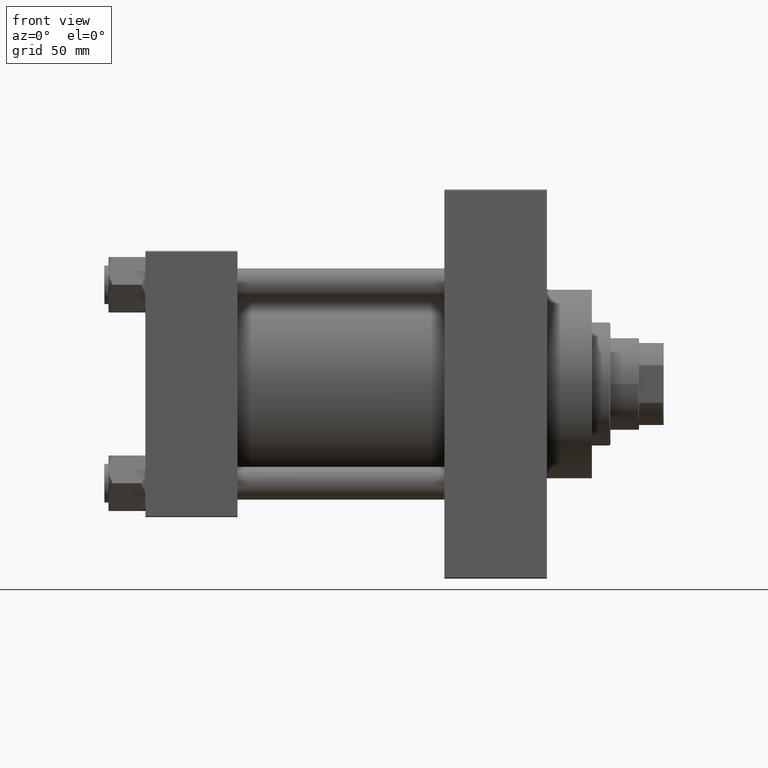
[diagram: clean part render]
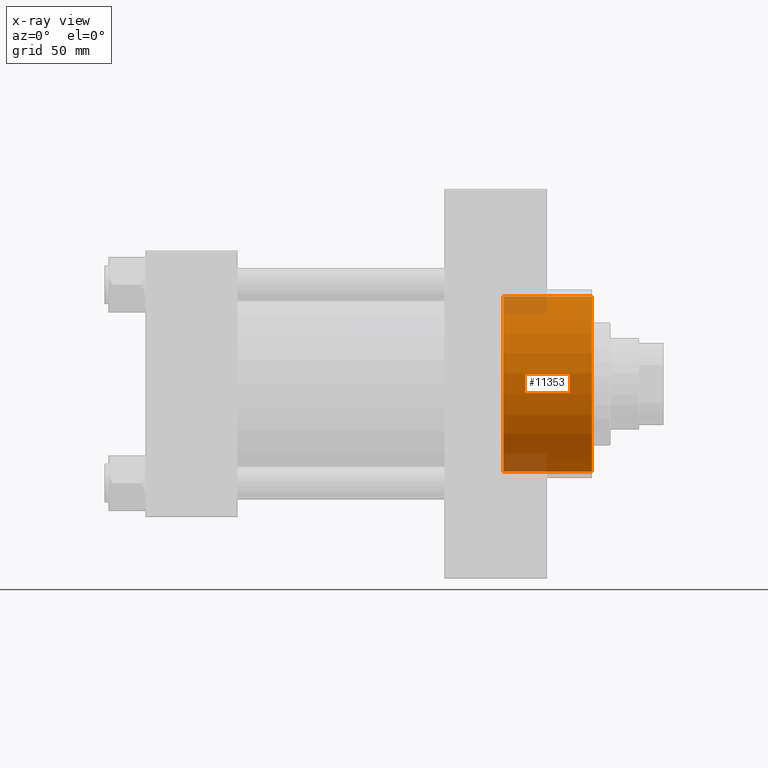
[diagram: x-ray — body ghosted, one internal face saturated and labeled with its STEP entity id]
A machine part, front view, then the same camera in x-ray: the body is ghosted and one INTERNAL B-rep face — a face not visible from any outside direction — is saturated and labeled: STEP entity #11353.
In plain terms, the highlighted cylindrical surface (partial cylindrical patch) has radius 42.75 mm, axis along (1, 0, 0).
Its self-contained STEP definition (entity closure, byte-faithful):
#682 = CIRCLE ( 'NONE', #29176, 42.75000000000000000 ) ;
#1096 = CARTESIAN_POINT ( 'NONE',  ( 174.7400000000000091, 0.000000000000000000, -42.75000000000000000 ) ) ;
#2944 = ORIENTED_EDGE ( 'NONE', *, *, #41215, .F. ) ;
#3793 = CARTESIAN_POINT ( 'NONE',  ( 174.7400000000000091, 5.235365066354935472E-15, 42.75000000000000000 ) ) ;
#6520 = CARTESIAN_POINT ( 'NONE',  ( 174.7400000000000091, 5.235365066354935472E-15, 42.75000000000000000 ) ) ;
#7078 = DIRECTION ( 'NONE',  ( 1.000000000000000000, -0.000000000000000000, -0.000000000000000000 ) ) ;
#8352 = DIRECTION ( 'NONE',  ( 1.000000000000000000, -0.000000000000000000, -0.000000000000000000 ) ) ;
#9221 = DIRECTION ( 'NONE',  ( 1.000000000000000000, 0.000000000000000000, 0.000000000000000000 ) ) ;
#10691 = DIRECTION ( 'NONE',  ( 0.000000000000000000, 0.000000000000000000, -1.000000000000000000 ) ) ;
#11353 = ADVANCED_FACE ( 'NONE', ( #19101 ), #26123, .F. ) ;
#15619 = AXIS2_PLACEMENT_3D ( 'NONE', #33330, #7078, #10691 ) ;
#16514 = ORIENTED_EDGE ( 'NONE', *, *, #20752, .T. ) ;
#16553 = VERTEX_POINT ( 'NONE', #23067 ) ;
#17282 = ORIENTED_EDGE ( 'NONE', *, *, #28596, .F. ) ;
#18129 = AXIS2_PLACEMENT_3D ( 'NONE', #45823, #23885, #43644 ) ;
#18430 = VECTOR ( 'NONE', #8352, 1000.000000000000000 ) ;
#19101 = FACE_OUTER_BOUND ( 'NONE', #34567, .T. ) ;
#20752 = EDGE_CURVE ( 'NONE', #24999, #16553, #43522, .T. ) ;
#23067 = CARTESIAN_POINT ( 'NONE',  ( 218.0000000000000000, 0.000000000000000000, -42.75000000000000000 ) ) ;
#23204 = DIRECTION ( 'NONE',  ( 0.000000000000000000, 0.000000000000000000, -1.000000000000000000 ) ) ;
#23262 = VERTEX_POINT ( 'NONE', #6520 ) ;
#23885 = DIRECTION ( 'NONE',  ( 1.000000000000000000, 0.000000000000000000, 0.000000000000000000 ) ) ;
#24999 = VERTEX_POINT ( 'NONE', #28783 ) ;
#26123 = CYLINDRICAL_SURFACE ( 'NONE', #15619, 42.75000000000000000 ) ;
#26676 = LINE ( 'NONE', #1096, #42071 ) ;
#28596 = EDGE_CURVE ( 'NONE', #23262, #42176, #682, .T. ) ;
#28783 = CARTESIAN_POINT ( 'NONE',  ( 218.0000000000000000, 5.235365066354935472E-15, 42.75000000000000000 ) ) ;
#29176 = AXIS2_PLACEMENT_3D ( 'NONE', #38623, #9221, #23204 ) ;
#33330 = CARTESIAN_POINT ( 'NONE',  ( 174.7400000000000091, 0.000000000000000000, 0.000000000000000000 ) ) ;
#33652 = EDGE_CURVE ( 'NONE', #23262, #24999, #44996, .T. ) ;
#34567 = EDGE_LOOP ( 'NONE', ( #17282, #39766, #16514, #2944 ) ) ;
#36718 = CARTESIAN_POINT ( 'NONE',  ( 174.7400000000000091, 0.000000000000000000, -42.75000000000000000 ) ) ;
#38623 = CARTESIAN_POINT ( 'NONE',  ( 174.7400000000000091, 0.000000000000000000, 0.000000000000000000 ) ) ;
#39766 = ORIENTED_EDGE ( 'NONE', *, *, #33652, .T. ) ;
#41215 = EDGE_CURVE ( 'NONE', #42176, #16553, #26676, .T. ) ;
#41835 = DIRECTION ( 'NONE',  ( 1.000000000000000000, -0.000000000000000000, -0.000000000000000000 ) ) ;
#42071 = VECTOR ( 'NONE', #41835, 1000.000000000000000 ) ;
#42176 = VERTEX_POINT ( 'NONE', #36718 ) ;
#43522 = CIRCLE ( 'NONE', #18129, 42.75000000000000000 ) ;
#43644 = DIRECTION ( 'NONE',  ( 0.000000000000000000, 0.000000000000000000, -1.000000000000000000 ) ) ;
#44996 = LINE ( 'NONE', #3793, #18430 ) ;
#45823 = CARTESIAN_POINT ( 'NONE',  ( 218.0000000000000000, 0.000000000000000000, 0.000000000000000000 ) ) ;